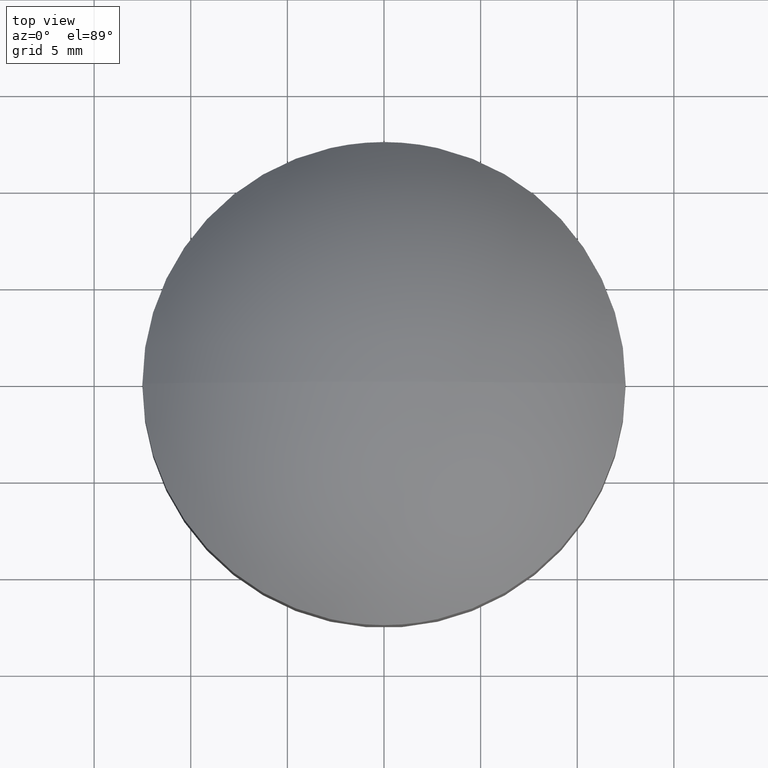
[diagram: clean part render]
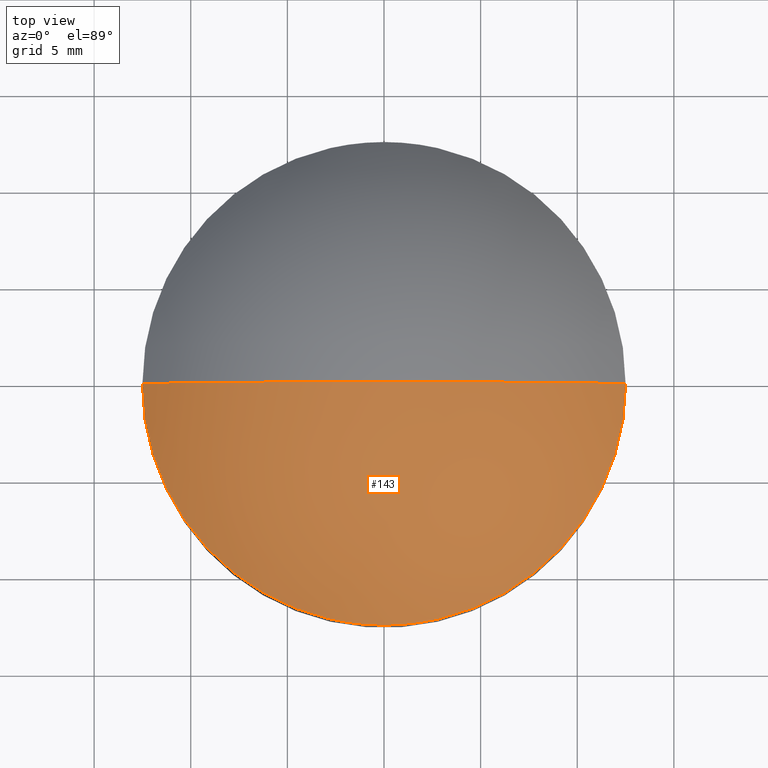
[diagram: same view with one face highlighted and labeled with its STEP entity id]
A machine part, top view. The second image highlights one B-rep face of the part: STEP entity #143.
In plain terms, the highlighted spherical surface has radius 16.8925 mm.
Its self-contained STEP definition (entity closure, byte-faithful):
#13 = CARTESIAN_POINT ( 'NONE',  ( 0.000000000000000000, 0.000000000000000000, -3.392486437613020378 ) ) ;
#19 = EDGE_CURVE ( 'NONE', #40, #170, #193, .T. ) ;
#25 = ORIENTED_EDGE ( 'NONE', *, *, #147, .F. ) ;
#26 = DIRECTION ( 'NONE',  ( -1.000000000000000000, 0.000000000000000000, 0.000000000000000000 ) ) ;
#27 = AXIS2_PLACEMENT_3D ( 'NONE', #13, #76, #134 ) ;
#31 = DIRECTION ( 'NONE',  ( -1.224646799147353207E-16, -1.000000000000000000, -0.000000000000000000 ) ) ;
#40 = VERTEX_POINT ( 'NONE', #81 ) ;
#42 = DIRECTION ( 'NONE',  ( 0.000000000000000000, 0.000000000000000000, 1.000000000000000000 ) ) ;
#52 = CIRCLE ( 'NONE', #69, 16.89248643761301949 ) ;
#55 = CARTESIAN_POINT ( 'NONE',  ( 0.000000000000000000, 0.000000000000000000, -3.392486437613020378 ) ) ;
#58 = SPHERICAL_SURFACE ( 'NONE', #101, 16.89248643761301949 ) ;
#60 = DIRECTION ( 'NONE',  ( 1.000000000000000000, -1.224646799147352961E-16, 0.000000000000000000 ) ) ;
#62 = CARTESIAN_POINT ( 'NONE',  ( 12.50000000000000000, 1.530808498934191521E-15, 7.969999999999999751 ) ) ;
#69 = AXIS2_PLACEMENT_3D ( 'NONE', #169, #31, #60 ) ;
#74 = CARTESIAN_POINT ( 'NONE',  ( -1.034366472273142859E-15, 0.000000000000000000, 13.50000000000000000 ) ) ;
#75 = ORIENTED_EDGE ( 'NONE', *, *, #108, .T. ) ;
#76 = DIRECTION ( 'NONE',  ( 0.000000000000000000, 1.000000000000000000, 0.000000000000000000 ) ) ;
#77 = CIRCLE ( 'NONE', #27, 16.89248643761301949 ) ;
#81 = CARTESIAN_POINT ( 'NONE',  ( -12.50000000000000000, 0.000000000000000000, 7.969999999999999751 ) ) ;
#101 = AXIS2_PLACEMENT_3D ( 'NONE', #55, #136, #26 ) ;
#108 = EDGE_CURVE ( 'NONE', #170, #184, #52, .T. ) ;
#112 = FACE_OUTER_BOUND ( 'NONE', #203, .T. ) ;
#134 = DIRECTION ( 'NONE',  ( 0.000000000000000000, 0.000000000000000000, 1.000000000000000000 ) ) ;
#136 = DIRECTION ( 'NONE',  ( -0.000000000000000000, -1.000000000000000000, 0.000000000000000000 ) ) ;
#143 = ADVANCED_FACE ( 'NONE', ( #112 ), #58, .T. ) ;
#147 = EDGE_CURVE ( 'NONE', #40, #184, #77, .T. ) ;
#156 = AXIS2_PLACEMENT_3D ( 'NONE', #199, #42, #201 ) ;
#169 = CARTESIAN_POINT ( 'NONE',  ( 0.000000000000000000, 0.000000000000000000, -3.392486437613020378 ) ) ;
#170 = VERTEX_POINT ( 'NONE', #62 ) ;
#172 = ORIENTED_EDGE ( 'NONE', *, *, #19, .T. ) ;
#184 = VERTEX_POINT ( 'NONE', #74 ) ;
#193 = CIRCLE ( 'NONE', #156, 12.50000000000000000 ) ;
#199 = CARTESIAN_POINT ( 'NONE',  ( 0.000000000000000000, 0.000000000000000000, 7.969999999999999751 ) ) ;
#201 = DIRECTION ( 'NONE',  ( 1.000000000000000000, 0.000000000000000000, 0.000000000000000000 ) ) ;
#203 = EDGE_LOOP ( 'NONE', ( #172, #75, #25 ) ) ;